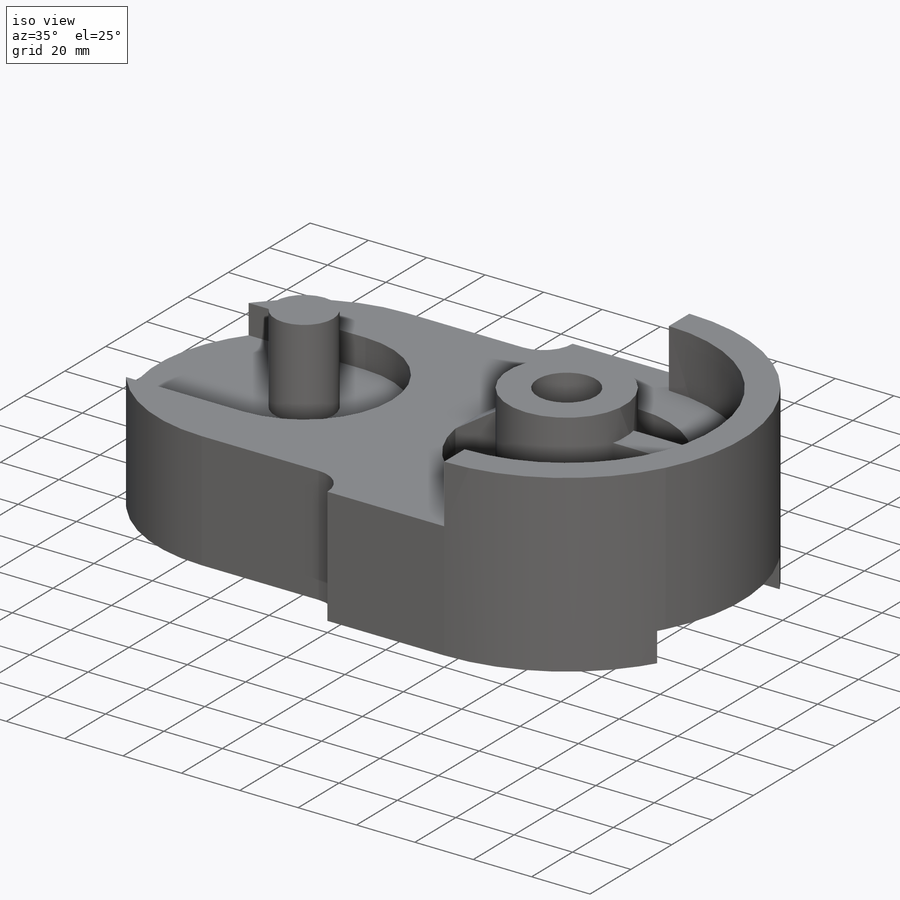
[diagram: iso view]
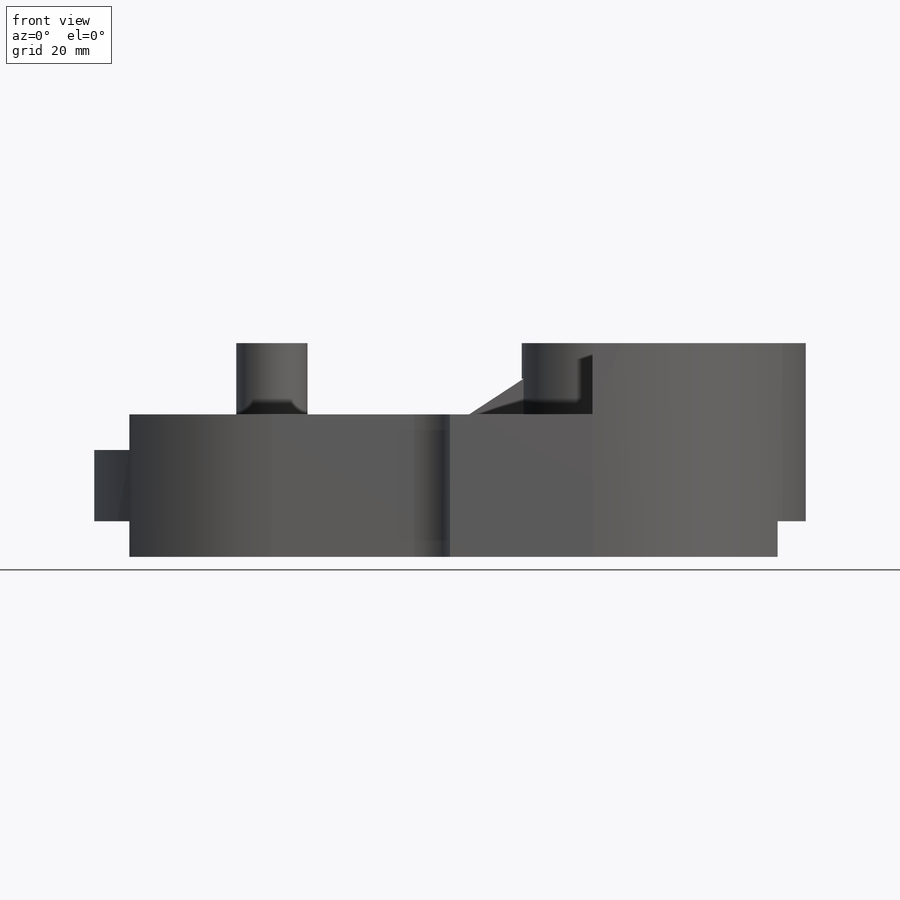
[diagram: front view]
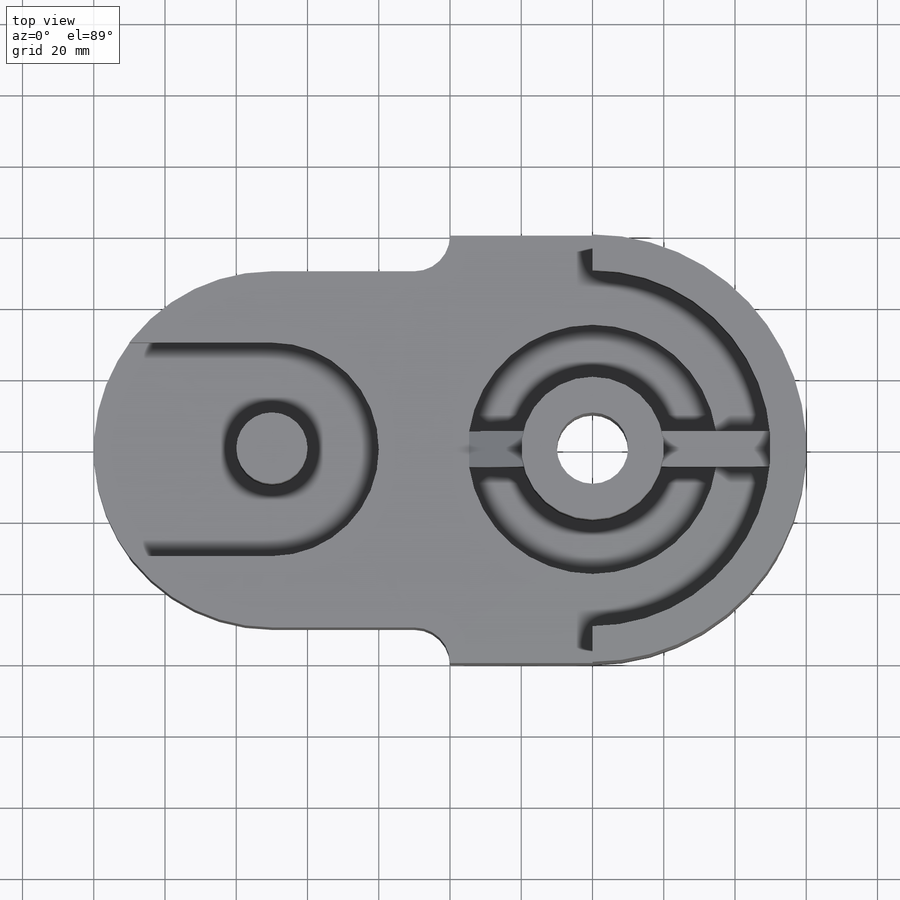
[diagram: top view]
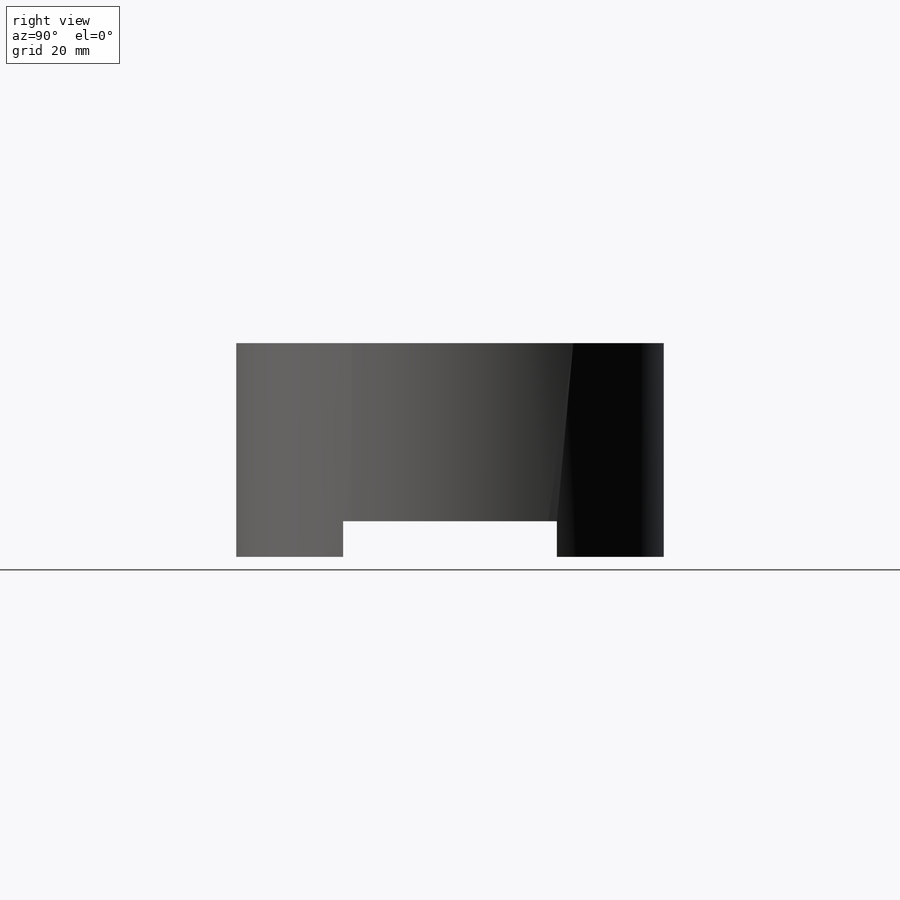
[diagram: right view]
SOLIDWORKS PART (.sldprt)
format: sldprt  version: not decoded by parser v0  size: 453,632 bytes
history: native  units: mm
features: sketch x17, cut_extrude x11, extrude x6, material x1 (+13 scaffold rows collapsed)
feature tree (48):
  scaffold x13  (default folders/planes/origin — collapsed)
  material  "Material <not specified>"
  sketch  "Sketch1"  dims[D1=200.0mm D2=120.0mm]
  extrude  "Boss-Extrude1"  Depth=40mm
  sketch  "Sketch2"  dims[c1.D2=50.0mm c1.D1=50.0mm c1.D3=50.0mm c1.D4=50.0mm c1.D5=50.0mm c1.D6=50.0mm c2.D1=50.0mm c2.D3=50.0mm c2.D4=60.0mm c2.D5=60.0mm c2.D6=90.0mm c2.D7=90.0mm c2.D8=10.0mm c2.D9=10.0mm]
  cut_extrude  "Cut-Extrude2"  Depth=40mm
  sketch  "Sketch3"  dims[D1=10.0mm D2=10.0mm]
  cut_extrude  "Cut-Extrude3"  Depth=40mm
  sketch  "Sketch4"
  cut_extrude  "Cut-Extrude4"  Depth=40mm
  sketch  "Sketch5"  dims[D1=60.0mm D2=20.0mm D3=~58.729962mm]
  cut_extrude  "Cut-Extrude5"  Depth=10mm
  sketch  "Sketch6"  dims[c1.D3=60.0mm c1.D1=40.0mm c1.D2=40.0mm c2.D3=~63.705953mm c2.D4=60.0mm]
  cut_extrude  "Cut-Extrude6"  Depth=116mm
  sketch  "Sketch7"  dims[D1=10.0mm D2=10.0mm]
  extrude  "Boss-Extrude2"  Depth=20mm
  sketch  "Sketch8"  dims[D1=20.0mm D2=20.0mm D3=40.0mm D4=40.0mm D5=0.0mm]
  cut_extrude  "Cut-Extrude7"  Depth=10mm
  sketch  "Sketch9"  dims[D1=20.0mm]
  extrude  "Boss-Extrude3"  Depth=30mm
  sketch  "Sketch10"  dims[D1=20.0mm D2=60.0mm D3=0.0mm]
  cut_extrude  "Cut-Extrude8"  Depth=69mm
  sketch  "Sketch11"  dims[D1=20.0mm D2=40.0mm]
  extrude  "Boss-Extrude4"  Depth=20mm
  sketch  "Sketch12"  dims[D1=40.0mm D2=70.0mm]
  cut_extrude  "Cut-Extrude9"  Depth=10mm
  sketch  "Sketch14"  dims[D3=~19.597107mm D1=10.0mm D2=55.0mm]
  extrude  "Boss-Extrude10"  Depth=10mm
  sketch  "Sketch15"  dims[D3=~35.355339mm D1=10.0mm D2=55.0mm]
  extrude  "Boss-Extrude11"  Depth=20mm
  sketch  "Sketch16"
  cut_extrude  "Cut-Extrude10"  Depth=20mm
  sketch  "Sketch17"
  cut_extrude  "Cut-Extrude11"  Depth=20mm
  sketch  "Sketch18"
  cut_extrude  "Cut-Extrude12"  Depth=20mm
decode coverage: 30 of 34 modeling features carry decoded parameters
note: ~ marks probable driven/reference dimensions
note: suppression state not decoded; provenance and decode notes live in map.json
